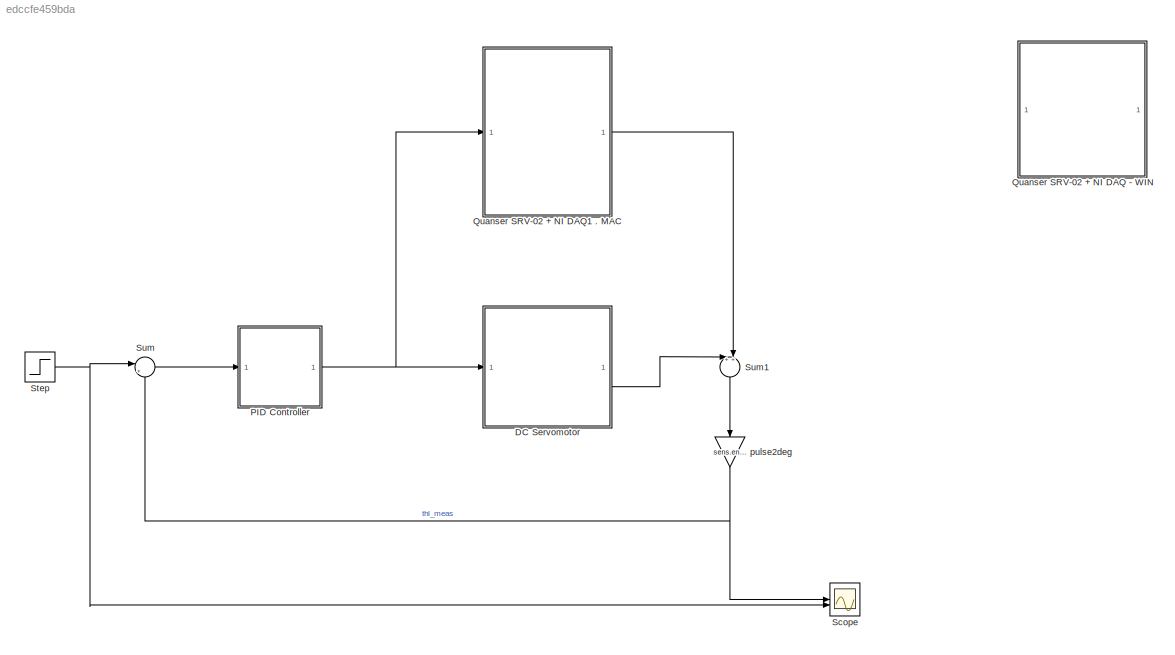
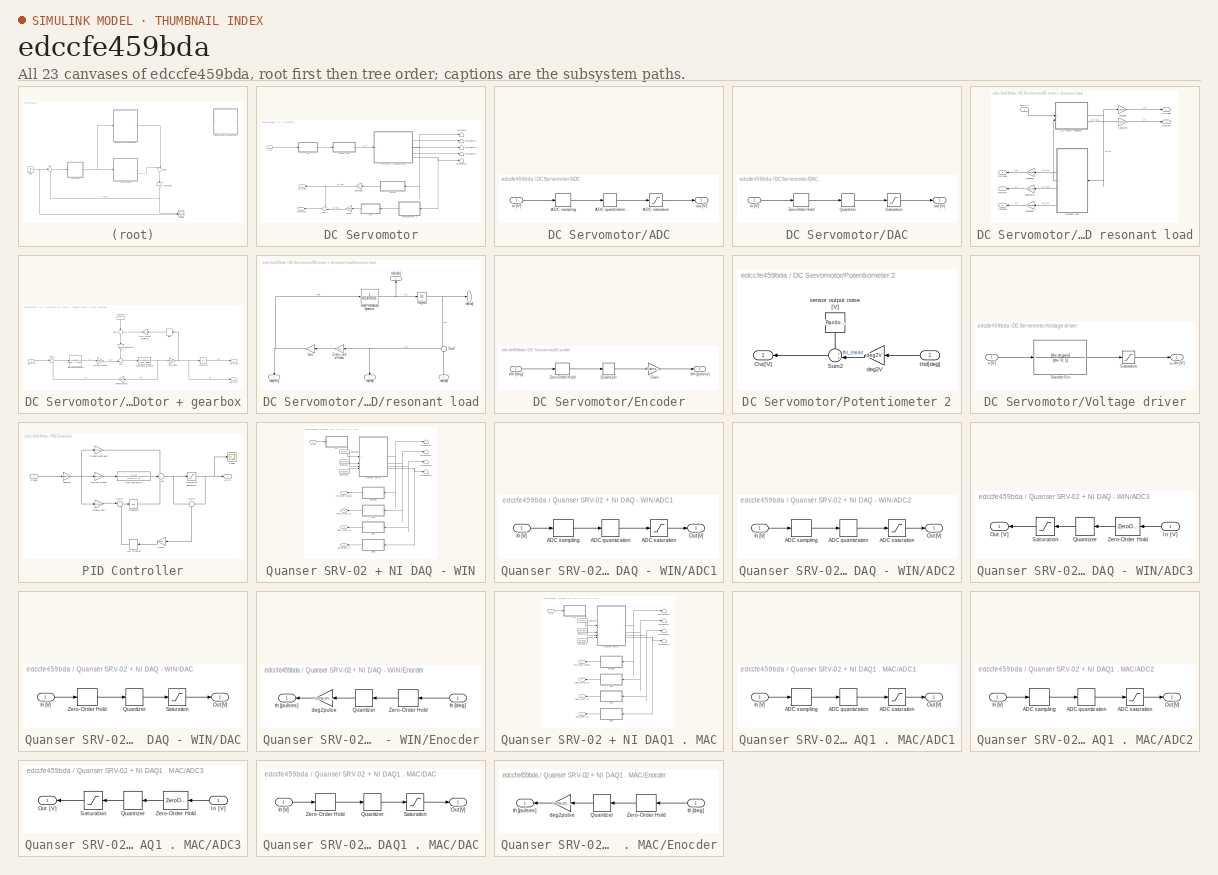
[diagram: thumbnail index - all 23 canvases of the model, root first then tree order]
MODEL slx_edccfe459bda
KIND model
CONFIG AbsTol = auto
CONFIG EnableMultiTasking = off
CONFIG FixedStep = auto
CONFIG MaxStep = auto
CONFIG MinStep = auto
CONFIG RelTol = 1e-3
CONFIG SampleTimeConstraint = Unconstrained
CONFIG SolverName = ode45
CONFIG StartTime = 0.0
CONFIG StopTime = 5
BLOCK [SubSystem] DC Servomotor
  Commented = on
BLOCK [SubSystem] DC Servomotor/ADC
  NameLocation = top
BLOCK [Quantizer] DC Servomotor/ADC/ADC quantization
  QuantizationInterval = daq.adc.q
BLOCK [ZeroOrderHold] DC Servomotor/ADC/ADC sampling
  SampleTime = 0.001
BLOCK [Saturate] DC Servomotor/ADC/ADC saturation
  LowerLimit = -10
  UpperLimit = 10
BLOCK [Inport] DC Servomotor/ADC/in [V]
BLOCK [Outport] DC Servomotor/ADC/out [V]
BLOCK [SubSystem] DC Servomotor/DAC
BLOCK [Quantizer] DC Servomotor/DAC/Quantizer
  QuantizationInterval = daq.dac.q
BLOCK [Saturate] DC Servomotor/DAC/Saturation
  LowerLimit = -10
  UpperLimit = 10
BLOCK [ZeroOrderHold] DC Servomotor/DAC/Zero-Order Hold
  SampleTime = 0.001
BLOCK [Inport] DC Servomotor/DAC/in [V]
BLOCK [Outport] DC Servomotor/DAC/out [V]
BLOCK [SubSystem] DC Servomotor/DC motor + resonant load
BLOCK [SubSystem] DC Servomotor/DC motor + resonant load/DC motor + gearbox
BLOCK [TransferFcn] DC Servomotor/DC motor + resonant load/DC motor + gearbox/Electrical Dynamics
  Denominator = [mot.L, (mot.R+sens.curr.Rs)]
BLOCK [Integrator] DC Servomotor/DC motor + resonant load/DC motor + gearbox/Integrator
BLOCK [TransferFcn] DC Servomotor/DC motor + resonant load/DC motor + gearbox/Mechanical Dynamics
  Denominator = [Jeq, Beq]
BLOCK [Signum] DC Servomotor/DC motor + resonant load/DC motor + gearbox/Sign
  ZeroCross = off
BLOCK [Sum] DC Servomotor/DC motor + resonant load/DC motor + gearbox/Sum
  Inputs = -+|
  NameLocation = top
BLOCK [Sum] DC Servomotor/DC motor + resonant load/DC motor + gearbox/Sum1
  Inputs = |+-
  NameLocation = top
BLOCK [Sum] DC Servomotor/DC motor + resonant load/DC motor + gearbox/Sum2
  Inputs = |++
  NameLocation = right
BLOCK [Gain] DC Servomotor/DC motor + resonant load/DC motor + gearbox/current2torque
  Gain = mot.Kt
BLOCK [Gain] DC Servomotor/DC motor + resonant load/DC motor + gearbox/load2rotor
  Gain = 1/gbox.N
  NameLocation = left
BLOCK [Gain] DC Servomotor/DC motor + resonant load/DC motor + gearbox/rotor2load
  Gain = 1/gbox.N
BLOCK [Gain] DC Servomotor/DC motor + resonant load/DC motor + gearbox/speed2voltage
  Gain = mot.Ke
BLOCK [Gain] DC Servomotor/DC motor + resonant load/DC motor + gearbox/static friction amplitude
  Gain = mld.tausf
BLOCK [Inport] DC Servomotor/DC motor + resonant load/DC motor + gearbox/taue[Nm]
  NameLocation = left
  Port = 2
BLOCK [Outport] DC Servomotor/DC motor + resonant load/DC motor + gearbox/thh [rad]
BLOCK [Inport] DC Servomotor/DC motor + resonant load/DC motor + gearbox/udrv [V]
BLOCK [Outport] DC Servomotor/DC motor + resonant load/DC motor + gearbox/wh[rad//s]
  Port = 2
BLOCK [Gain] DC Servomotor/DC motor + resonant load/rad2deg
  Gain = rad2deg
BLOCK [Gain] DC Servomotor/DC motor + resonant load/rad2deg1
  Gain = rad2deg
  NameLocation = top
BLOCK [Gain] DC Servomotor/DC motor + resonant load/rad2deg2
  Gain = rad2deg
  NameLocation = top
BLOCK [Gain] DC Servomotor/DC motor + resonant load/rads2rpm
  Gain = rads2rpm
BLOCK [Gain] DC Servomotor/DC motor + resonant load/rads2rpm1
  Gain = rads2rpm
  NameLocation = top
BLOCK [SubSystem] DC Servomotor/DC motor + resonant load/resonant load
  NameLocation = top
BLOCK [TransferFcn] DC Servomotor/DC motor + resonant load/resonant load/Beam mechanical dynamics
  Denominator = [mld.Jb mld.Bb]
  Numerator = 1
BLOCK [Gain] DC Servomotor/DC motor + resonant load/resonant load/Elastic joint stiffness
  Gain = mld.k
  NameLocation = top
BLOCK [Gain] DC Servomotor/DC motor + resonant load/resonant load/Gain
  Gain = -1
  NameLocation = top
BLOCK [Integrator] DC Servomotor/DC motor + resonant load/resonant load/Integrator
BLOCK [Sum] DC Servomotor/DC motor + resonant load/resonant load/Sum2
  Inputs = +-
BLOCK [Outport] DC Servomotor/DC motor + resonant load/resonant load/taue[Nm]
  NameLocation = left
BLOCK [Outport] DC Servomotor/DC motor + resonant load/resonant load/thb[rad]
  Port = 2
BLOCK [Outport] DC Servomotor/DC motor + resonant load/resonant load/thd[rad]
  NameLocation = left
  Port = 4
BLOCK [Inport] DC Servomotor/DC motor + resonant load/resonant load/thh[rad]
  NameLocation = right
BLOCK [Outport] DC Servomotor/DC motor + resonant load/resonant load/wb[rad//s]
  NameLocation = right
  Port = 3
BLOCK [Outport] DC Servomotor/DC motor + resonant load/thb [deg]
  NameLocation = top
  Port = 3
BLOCK [Outport] DC Servomotor/DC motor + resonant load/thd[deg]
  NameLocation = top
  Port = 5
BLOCK [Outport] DC Servomotor/DC motor + resonant load/thh [deg]
BLOCK [Inport] DC Servomotor/DC motor + resonant load/udrv [V]
BLOCK [Outport] DC Servomotor/DC motor + resonant load/wb[rpm]
  NameLocation = top
  Port = 4
BLOCK [Outport] DC Servomotor/DC motor + resonant load/wh[rpm]
  Port = 2
BLOCK [SubSystem] DC Servomotor/Encoder
BLOCK [Gain] DC Servomotor/Encoder/Gain
  Gain = 1/sens.enc.pulse2deg
BLOCK [Quantizer] DC Servomotor/Encoder/Quantizer
  QuantizationInterval = sens.enc.pulse2deg
BLOCK [ZeroOrderHold] DC Servomotor/Encoder/Zero-Order Hold
  SampleTime = 0.001
BLOCK [Inport] DC Servomotor/Encoder/thh [deg]
BLOCK [Outport] DC Servomotor/Encoder/thh [pulses]
BLOCK [SubSystem] DC Servomotor/Potentiometer 2
  NameLocation = top
BLOCK [Outport] DC Servomotor/Potentiometer 2/Out[V]
  NameLocation = top
BLOCK [Sum] DC Servomotor/Potentiometer 2/Sum2
  Inputs = ++|
BLOCK [Gain] DC Servomotor/Potentiometer 2/deg2V
  Gain = deg2V
BLOCK [RandomNumber] DC Servomotor/Potentiometer 2/sensor output noise [V]
  NameLocation = left
  SampleTime = 0.001
  Variance = 3.5*10^[-7]
BLOCK [Inport] DC Servomotor/Potentiometer 2/thd[deg]
  NameLocation = top
BLOCK [Sum] DC Servomotor/Sum2
  Inputs = ++|
BLOCK [Terminator] DC Servomotor/Terminator
BLOCK [Terminator] DC Servomotor/Terminator1
BLOCK [Terminator] DC Servomotor/Terminator2
BLOCK [Terminator] DC Servomotor/Terminator3
BLOCK [Terminator] DC Servomotor/Terminator4
BLOCK [Gain] DC Servomotor/V2deg
  Gain = V2deg
BLOCK [SubSystem] DC Servomotor/Voltage driver
BLOCK [Saturate] DC Servomotor/Voltage driver/Saturation
  LowerLimit = -12
  UpperLimit = 12
BLOCK [TransferFcn] DC Servomotor/Voltage driver/Transfer Fcn
  Denominator = [drv.Tc 1]
  Numerator = [drv.dcgain]
BLOCK [Inport] DC Servomotor/Voltage driver/u [V]
BLOCK [Outport] DC Servomotor/Voltage driver/u_drv [V]
BLOCK [Gain] DC Servomotor/pulse2deg
  Gain = sens.enc.pulse2deg
BLOCK [Outport] DC Servomotor/thb_meas
  NameLocation = top
BLOCK [Outport] DC Servomotor/thh_meas
  NameLocation = top
  Port = 2
BLOCK [Inport] DC Servomotor/u [V]
BLOCK [SubSystem] PID Controller
BLOCK [ManualSwitch] PID Controller/Anti wind-up
  NameLocation = top
BLOCK [Gain] PID Controller/Derivative gain
  Gain = PID.Kd
BLOCK [Gain] PID Controller/Gain2
  Gain = Kw/5
  NameLocation = top
BLOCK [Gain] PID Controller/Integral gain
  Gain = PID.Ki
BLOCK [Integrator] PID Controller/Integrator
BLOCK [Gain] PID Controller/Proportional gain
  Gain = PID.Kp
BLOCK [TransferFcn] PID Controller/Real derivative
  Denominator = [PID.Tl 1]
  Numerator = [1, 0]
BLOCK [Saturate] PID Controller/Saturation detection
  LowerLimit = -10
  UpperLimit = 10
BLOCK [Scope] PID Controller/Scope
  Floating = off
  NumInputPorts = 1
  ScopeSpecificationString = Simulink.scopes.TimeScopeBlockCfg('CurrentConfiguration', extmgr.ConfigurationSet(extmgr.Configuration('Core','General UI',true),extmgr.Configuration('Core','Source UI',true),extmgr.Configuration('Sources','WiredSimulink',true,'DataLoggingVariableName','ScopeData1'),extmgr.Configuration('Visuals','Time Domain',true,'SerializedDisplays',{struct('MinYLimReal','-8.61279','MaxYLimReal','77.5151','YLab...<+1427ch>
BLOCK [Sum] PID Controller/Sum
  Inputs = +++
BLOCK [Sum] PID Controller/Sum1
  Inputs = +|-
  NameLocation = left
BLOCK [Sum] PID Controller/Sum2
  Inputs = |+-
BLOCK [Gain] PID Controller/deg2rad
  Gain = deg2rad
BLOCK [Inport] PID Controller/e [deg]
BLOCK [Outport] PID Controller/uc [V]
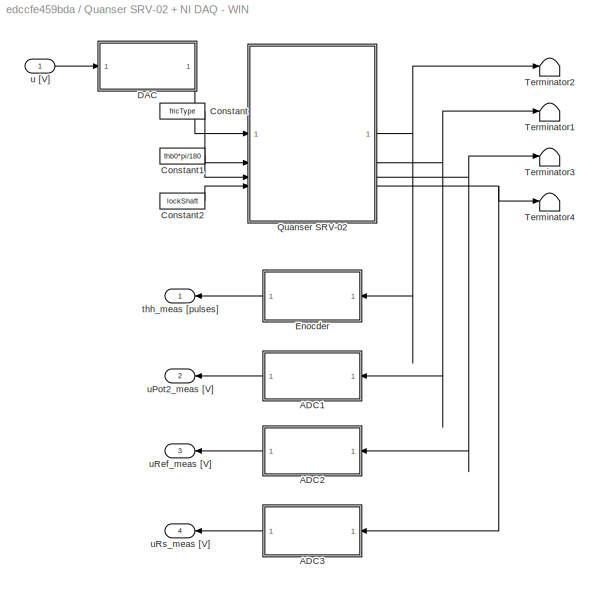
BLOCK [SubSystem] Quanser SRV-02 + NI DAQ - WIN
  Commented = on
BLOCK [SubSystem] Quanser SRV-02 + NI DAQ - WIN/ADC1
BLOCK [Quantizer] Quanser SRV-02 + NI DAQ - WIN/ADC1/ADC quantization
  QuantizationInterval = daq.adc.q
BLOCK [ZeroOrderHold] Quanser SRV-02 + NI DAQ - WIN/ADC1/ADC sampling
  SampleTime = Ts
BLOCK [Saturate] Quanser SRV-02 + NI DAQ - WIN/ADC1/ADC saturation
  LowerLimit = -daq.adc.fs
  UpperLimit = daq.adc.fs
BLOCK [Inport] Quanser SRV-02 + NI DAQ - WIN/ADC1/In [V]
BLOCK [Outport] Quanser SRV-02 + NI DAQ - WIN/ADC1/Out [V]
BLOCK [SubSystem] Quanser SRV-02 + NI DAQ - WIN/ADC2
BLOCK [Quantizer] Quanser SRV-02 + NI DAQ - WIN/ADC2/ADC quantization
  QuantizationInterval = daq.adc.q
BLOCK [ZeroOrderHold] Quanser SRV-02 + NI DAQ - WIN/ADC2/ADC sampling
  SampleTime = Ts
BLOCK [Saturate] Quanser SRV-02 + NI DAQ - WIN/ADC2/ADC saturation
  LowerLimit = -daq.adc.fs
  UpperLimit = daq.adc.fs
BLOCK [Inport] Quanser SRV-02 + NI DAQ - WIN/ADC2/In [V]
BLOCK [Outport] Quanser SRV-02 + NI DAQ - WIN/ADC2/Out [V]
BLOCK [SubSystem] Quanser SRV-02 + NI DAQ - WIN/ADC3
BLOCK [Inport] Quanser SRV-02 + NI DAQ - WIN/ADC3/In [V]
BLOCK [Outport] Quanser SRV-02 + NI DAQ - WIN/ADC3/Out [V]
BLOCK [Quantizer] Quanser SRV-02 + NI DAQ - WIN/ADC3/Quantizer
  QuantizationInterval = daq.adc.q
BLOCK [Saturate] Quanser SRV-02 + NI DAQ - WIN/ADC3/Saturation
  LowerLimit = -daq.adc.fs
  UpperLimit = daq.adc.fs
BLOCK [ZeroOrderHold] Quanser SRV-02 + NI DAQ - WIN/ADC3/Zero-Order Hold
  SampleTime = Ts
BLOCK [Constant] Quanser SRV-02 + NI DAQ - WIN/Constant
  Value = fricType
BLOCK [Constant] Quanser SRV-02 + NI DAQ - WIN/Constant1
  SampleTime = Inf
  Value = thb0*pi/180
BLOCK [Constant] Quanser SRV-02 + NI DAQ - WIN/Constant2
  SampleTime = Inf
  Value = lockShaft
BLOCK [SubSystem] Quanser SRV-02 + NI DAQ - WIN/DAC
BLOCK [Inport] Quanser SRV-02 + NI DAQ - WIN/DAC/In [V]
BLOCK [Outport] Quanser SRV-02 + NI DAQ - WIN/DAC/Out [V]
BLOCK [Quantizer] Quanser SRV-02 + NI DAQ - WIN/DAC/Quantizer
  QuantizationInterval = daq.dac.q
BLOCK [Saturate] Quanser SRV-02 + NI DAQ - WIN/DAC/Saturation
  LowerLimit = -daq.dac.fs
  UpperLimit = daq.dac.fs
BLOCK [ZeroOrderHold] Quanser SRV-02 + NI DAQ - WIN/DAC/Zero-Order Hold
  SampleTime = Ts
BLOCK [SubSystem] Quanser SRV-02 + NI DAQ - WIN/Enocder
BLOCK [Quantizer] Quanser SRV-02 + NI DAQ - WIN/Enocder/Quantizer
  QuantizationInterval = sens.enc.pulse2deg
BLOCK [ZeroOrderHold] Quanser SRV-02 + NI DAQ - WIN/Enocder/Zero-Order Hold
  SampleTime = Ts
BLOCK [Gain] Quanser SRV-02 + NI DAQ - WIN/Enocder/deg2pulse
  Gain = sens.enc.deg2pulse
BLOCK [Inport] Quanser SRV-02 + NI DAQ - WIN/Enocder/th [deg]
BLOCK [Outport] Quanser SRV-02 + NI DAQ - WIN/Enocder/th [pulses]
BLOCK [ModelReference] Quanser SRV-02 + NI DAQ - WIN/Quanser SRV-02
  CopyOfModelProtected = on
  ModelNameDialog = SRV02RL_win64.slxp
  ModelReferenceVersion = 1.76
BLOCK [Terminator] Quanser SRV-02 + NI DAQ - WIN/Terminator1
BLOCK [Terminator] Quanser SRV-02 + NI DAQ - WIN/Terminator2
BLOCK [Terminator] Quanser SRV-02 + NI DAQ - WIN/Terminator3
BLOCK [Terminator] Quanser SRV-02 + NI DAQ - WIN/Terminator4
BLOCK [Outport] Quanser SRV-02 + NI DAQ - WIN/thh_meas [pulses]
BLOCK [Inport] Quanser SRV-02 + NI DAQ - WIN/u [V]
BLOCK [Outport] Quanser SRV-02 + NI DAQ - WIN/uPot2_meas [V]
  Port = 2
BLOCK [Outport] Quanser SRV-02 + NI DAQ - WIN/uRef_meas [V]
  Port = 3
BLOCK [Outport] Quanser SRV-02 + NI DAQ - WIN/uRs_meas [V]
  Port = 4
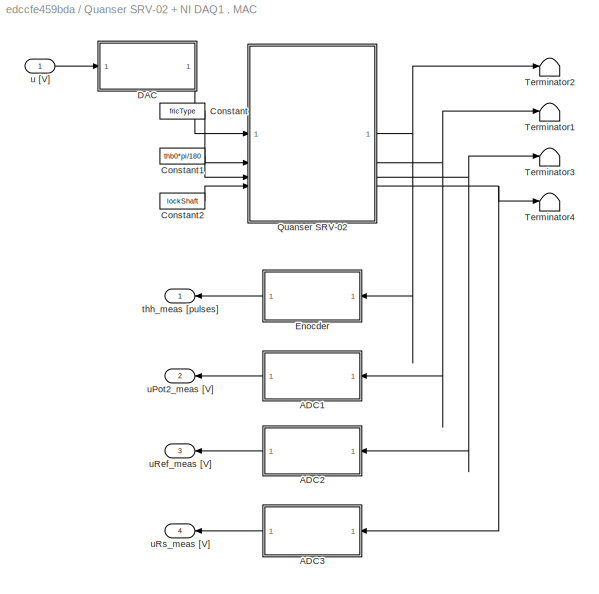
BLOCK [SubSystem] Quanser SRV-02 + NI DAQ1 . MAC
BLOCK [SubSystem] Quanser SRV-02 + NI DAQ1 . MAC/ADC1
BLOCK [Quantizer] Quanser SRV-02 + NI DAQ1 . MAC/ADC1/ADC quantization
  QuantizationInterval = daq.adc.q
BLOCK [ZeroOrderHold] Quanser SRV-02 + NI DAQ1 . MAC/ADC1/ADC sampling
  SampleTime = Ts
BLOCK [Saturate] Quanser SRV-02 + NI DAQ1 . MAC/ADC1/ADC saturation
  LowerLimit = -daq.adc.fs
  UpperLimit = daq.adc.fs
BLOCK [Inport] Quanser SRV-02 + NI DAQ1 . MAC/ADC1/In [V]
BLOCK [Outport] Quanser SRV-02 + NI DAQ1 . MAC/ADC1/Out [V]
BLOCK [SubSystem] Quanser SRV-02 + NI DAQ1 . MAC/ADC2
BLOCK [Quantizer] Quanser SRV-02 + NI DAQ1 . MAC/ADC2/ADC quantization
  QuantizationInterval = daq.adc.q
BLOCK [ZeroOrderHold] Quanser SRV-02 + NI DAQ1 . MAC/ADC2/ADC sampling
  SampleTime = Ts
BLOCK [Saturate] Quanser SRV-02 + NI DAQ1 . MAC/ADC2/ADC saturation
  LowerLimit = -daq.adc.fs
  UpperLimit = daq.adc.fs
BLOCK [Inport] Quanser SRV-02 + NI DAQ1 . MAC/ADC2/In [V]
BLOCK [Outport] Quanser SRV-02 + NI DAQ1 . MAC/ADC2/Out [V]
BLOCK [SubSystem] Quanser SRV-02 + NI DAQ1 . MAC/ADC3
BLOCK [Inport] Quanser SRV-02 + NI DAQ1 . MAC/ADC3/In [V]
BLOCK [Outport] Quanser SRV-02 + NI DAQ1 . MAC/ADC3/Out [V]
BLOCK [Quantizer] Quanser SRV-02 + NI DAQ1 . MAC/ADC3/Quantizer
  QuantizationInterval = daq.adc.q
BLOCK [Saturate] Quanser SRV-02 + NI DAQ1 . MAC/ADC3/Saturation
  LowerLimit = -daq.adc.fs
  UpperLimit = daq.adc.fs
BLOCK [ZeroOrderHold] Quanser SRV-02 + NI DAQ1 . MAC/ADC3/Zero-Order Hold
  SampleTime = Ts
BLOCK [Constant] Quanser SRV-02 + NI DAQ1 . MAC/Constant
  Value = fricType
BLOCK [Constant] Quanser SRV-02 + NI DAQ1 . MAC/Constant1
  SampleTime = Inf
  Value = thb0*pi/180
BLOCK [Constant] Quanser SRV-02 + NI DAQ1 . MAC/Constant2
  SampleTime = Inf
  Value = lockShaft
BLOCK [SubSystem] Quanser SRV-02 + NI DAQ1 . MAC/DAC
BLOCK [Inport] Quanser SRV-02 + NI DAQ1 . MAC/DAC/In [V]
BLOCK [Outport] Quanser SRV-02 + NI DAQ1 . MAC/DAC/Out [V]
BLOCK [Quantizer] Quanser SRV-02 + NI DAQ1 . MAC/DAC/Quantizer
  QuantizationInterval = daq.dac.q
BLOCK [Saturate] Quanser SRV-02 + NI DAQ1 . MAC/DAC/Saturation
  LowerLimit = -daq.dac.fs
  UpperLimit = daq.dac.fs
BLOCK [ZeroOrderHold] Quanser SRV-02 + NI DAQ1 . MAC/DAC/Zero-Order Hold
  SampleTime = Ts
BLOCK [SubSystem] Quanser SRV-02 + NI DAQ1 . MAC/Enocder
BLOCK [Quantizer] Quanser SRV-02 + NI DAQ1 . MAC/Enocder/Quantizer
  QuantizationInterval = sens.enc.pulse2deg
BLOCK [ZeroOrderHold] Quanser SRV-02 + NI DAQ1 . MAC/Enocder/Zero-Order Hold
  SampleTime = Ts
BLOCK [Gain] Quanser SRV-02 + NI DAQ1 . MAC/Enocder/deg2pulse
  Gain = sens.enc.deg2pulse
BLOCK [Inport] Quanser SRV-02 + NI DAQ1 . MAC/Enocder/th [deg]
BLOCK [Outport] Quanser SRV-02 + NI DAQ1 . MAC/Enocder/th [pulses]
BLOCK [ModelReference] Quanser SRV-02 + NI DAQ1 . MAC/Quanser SRV-02
  CopyOfModelProtected = on
  ModelNameDialog = SRV02RL_maci64.slxp
  ModelReferenceVersion = 1.76
BLOCK [Terminator] Quanser SRV-02 + NI DAQ1 . MAC/Terminator1
BLOCK [Terminator] Quanser SRV-02 + NI DAQ1 . MAC/Terminator2
BLOCK [Terminator] Quanser SRV-02 + NI DAQ1 . MAC/Terminator3
BLOCK [Terminator] Quanser SRV-02 + NI DAQ1 . MAC/Terminator4
BLOCK [Outport] Quanser SRV-02 + NI DAQ1 . MAC/thh_meas [pulses]
BLOCK [Inport] Quanser SRV-02 + NI DAQ1 . MAC/u [V]
BLOCK [Outport] Quanser SRV-02 + NI DAQ1 . MAC/uPot2_meas [V]
  Port = 2
BLOCK [Outport] Quanser SRV-02 + NI DAQ1 . MAC/uRef_meas [V]
  Port = 3
BLOCK [Outport] Quanser SRV-02 + NI DAQ1 . MAC/uRs_meas [V]
  Port = 4
BLOCK [Scope] Scope
  Floating = off
  NumInputPorts = 2
  ScopeSpecificationString = Simulink.scopes.TimeScopeBlockCfg('CurrentConfiguration', extmgr.ConfigurationSet(extmgr.Configuration('Core','General UI',true),extmgr.Configuration('Core','Source UI',true),extmgr.Configuration('Sources','WiredSimulink',true,'DataLoggingVariableName','ScopeData1'),extmgr.Configuration('Visuals','Time Domain',true,'SerializedDisplays',{struct('MinYLimReal','-7.02','MaxYLimReal','63.18','YLabelRea...<+1716ch>
BLOCK [Step] Step
  After = 50
  SampleTime = 0
BLOCK [Sum] Sum
  Inputs = |+-
BLOCK [Sum] Sum1
  Inputs = ++|
  NameLocation = left
BLOCK [Gain] pulse2deg
  Gain = sens.enc.pulse2deg
  NameLocation = left
LINE DC Servomotor/ADC/ADC quantization:1 -> DC Servomotor/ADC/ADC saturation:1
LINE DC Servomotor/ADC/ADC sampling:1 -> DC Servomotor/ADC/ADC quantization:1
LINE DC Servomotor/ADC/ADC saturation:1 -> DC Servomotor/ADC/out [V]:1
LINE DC Servomotor/ADC/in [V]:1 -> DC Servomotor/ADC/ADC sampling:1
LINE DC Servomotor/ADC:1 -> DC Servomotor/V2deg:1
LINE DC Servomotor/DAC/Quantizer:1 -> DC Servomotor/DAC/Saturation:1
LINE DC Servomotor/DAC/Saturation:1 -> DC Servomotor/DAC/out [V]:1
LINE DC Servomotor/DAC/Zero-Order Hold:1 -> DC Servomotor/DAC/Quantizer:1
LINE DC Servomotor/DAC/in [V]:1 -> DC Servomotor/DAC/Zero-Order Hold:1
LINE DC Servomotor/DAC:1 -> DC Servomotor/Voltage driver:1
LINE DC Servomotor/DC motor + resonant load/DC motor + gearbox/Electrical Dynamics:1 -> DC Servomotor/DC motor + resonant load/DC motor + gearbox/current2torque:1
LINE DC Servomotor/DC motor + resonant load/DC motor + gearbox/Integrator:1 -> DC Servomotor/DC motor + resonant load/DC motor + gearbox/thh [rad]:1
NET DC Servomotor/DC motor + resonant load/DC motor + gearbox/Mechanical Dynamics:1 -> DC Servomotor/DC motor + resonant load/DC motor + gearbox/rotor2load:1, DC Servomotor/DC motor + resonant load/DC motor + gearbox/speed2voltage:1
LINE DC Servomotor/DC motor + resonant load/DC motor + gearbox/Sign:1 -> DC Servomotor/DC motor + resonant load/DC motor + gearbox/static friction amplitude:1
LINE DC Servomotor/DC motor + resonant load/DC motor + gearbox/Sum1:1 -> DC Servomotor/DC motor + resonant load/DC motor + gearbox/Electrical Dynamics:1
LINE DC Servomotor/DC motor + resonant load/DC motor + gearbox/Sum2:1 -> DC Servomotor/DC motor + resonant load/DC motor + gearbox/load2rotor:1
LINE DC Servomotor/DC motor + resonant load/DC motor + gearbox/Sum:1 -> DC Servomotor/DC motor + resonant load/DC motor + gearbox/Mechanical Dynamics:1
LINE DC Servomotor/DC motor + resonant load/DC motor + gearbox/current2torque:1 -> DC Servomotor/DC motor + resonant load/DC motor + gearbox/Sum:2
LINE DC Servomotor/DC motor + resonant load/DC motor + gearbox/load2rotor:1 -> DC Servomotor/DC motor + resonant load/DC motor + gearbox/Sum:1
NET DC Servomotor/DC motor + resonant load/DC motor + gearbox/rotor2load:1 -> DC Servomotor/DC motor + resonant load/DC motor + gearbox/Integrator:1, DC Servomotor/DC motor + resonant load/DC motor + gearbox/Sign:1, DC Servomotor/DC motor + resonant load/DC motor + gearbox/wh[rad//s]:1
LINE DC Servomotor/DC motor + resonant load/DC motor + gearbox/speed2voltage:1 -> DC Servomotor/DC motor + resonant load/DC motor + gearbox/Sum1:2
LINE DC Servomotor/DC motor + resonant load/DC motor + gearbox/static friction amplitude:1 -> DC Servomotor/DC motor + resonant load/DC motor + gearbox/Sum2:2
LINE DC Servomotor/DC motor + resonant load/DC motor + gearbox/taue[Nm]:1 -> DC Servomotor/DC motor + resonant load/DC motor + gearbox/Sum2:1
LINE DC Servomotor/DC motor + resonant load/DC motor + gearbox/udrv [V]:1 -> DC Servomotor/DC motor + resonant load/DC motor + gearbox/Sum1:1
NET DC Servomotor/DC motor + resonant load/DC motor + gearbox:1 -> DC Servomotor/DC motor + resonant load/rad2deg:1, DC Servomotor/DC motor + resonant load/resonant load:1
LINE DC Servomotor/DC motor + resonant load/DC motor + gearbox:2 -> DC Servomotor/DC motor + resonant load/rads2rpm:1
LINE DC Servomotor/DC motor + resonant load/rad2deg1:1 -> DC Servomotor/DC motor + resonant load/thb [deg]:1
LINE DC Servomotor/DC motor + resonant load/rad2deg2:1 -> DC Servomotor/DC motor + resonant load/thd[deg]:1
LINE DC Servomotor/DC motor + resonant load/rad2deg:1 -> DC Servomotor/DC motor + resonant load/thh [deg]:1
LINE DC Servomotor/DC motor + resonant load/rads2rpm1:1 -> DC Servomotor/DC motor + resonant load/wb[rpm]:1
LINE DC Servomotor/DC motor + resonant load/rads2rpm:1 -> DC Servomotor/DC motor + resonant load/wh[rpm]:1
NET DC Servomotor/DC motor + resonant load/resonant load/Beam mechanical dynamics:1 -> DC Servomotor/DC motor + resonant load/resonant load/Integrator:1, DC Servomotor/DC motor + resonant load/resonant load/wb[rad//s]:1
LINE DC Servomotor/DC motor + resonant load/resonant load/Elastic joint stiffness:1 -> DC Servomotor/DC motor + resonant load/resonant load/Gain:1
NET DC Servomotor/DC motor + resonant load/resonant load/Gain:1 -> DC Servomotor/DC motor + resonant load/resonant load/Beam mechanical dynamics:1, DC Servomotor/DC motor + resonant load/resonant load/taue[Nm]:1
NET DC Servomotor/DC motor + resonant load/resonant load/Integrator:1 -> DC Servomotor/DC motor + resonant load/resonant load/Sum2:1, DC Servomotor/DC motor + resonant load/resonant load/thb[rad]:1
NET DC Servomotor/DC motor + resonant load/resonant load/Sum2:1 -> DC Servomotor/DC motor + resonant load/resonant load/Elastic joint stiffness:1, DC Servomotor/DC motor + resonant load/resonant load/thd[rad]:1
LINE DC Servomotor/DC motor + resonant load/resonant load/thh[rad]:1 -> DC Servomotor/DC motor + resonant load/resonant load/Sum2:2
LINE DC Servomotor/DC motor + resonant load/resonant load:1 -> DC Servomotor/DC motor + resonant load/DC motor + gearbox:2
LINE DC Servomotor/DC motor + resonant load/resonant load:2 -> DC Servomotor/DC motor + resonant load/rad2deg1:1
LINE DC Servomotor/DC motor + resonant load/resonant load:3 -> DC Servomotor/DC motor + resonant load/rads2rpm1:1
LINE DC Servomotor/DC motor + resonant load/resonant load:4 -> DC Servomotor/DC motor + resonant load/rad2deg2:1
LINE DC Servomotor/DC motor + resonant load/udrv [V]:1 -> DC Servomotor/DC motor + resonant load/DC motor + gearbox:1
NET DC Servomotor/DC motor + resonant load:1 -> DC Servomotor/Encoder:1, DC Servomotor/Terminator:1
LINE DC Servomotor/DC motor + resonant load:2 -> DC Servomotor/Terminator1:1
LINE DC Servomotor/DC motor + resonant load:3 -> DC Servomotor/Terminator2:1
LINE DC Servomotor/DC motor + resonant load:4 -> DC Servomotor/Terminator3:1
NET DC Servomotor/DC motor + resonant load:5 -> DC Servomotor/Potentiometer 2:1, DC Servomotor/Terminator4:1
LINE DC Servomotor/Encoder/Gain:1 -> DC Servomotor/Encoder/thh [pulses]:1
LINE DC Servomotor/Encoder/Quantizer:1 -> DC Servomotor/Encoder/Gain:1
LINE DC Servomotor/Encoder/Zero-Order Hold:1 -> DC Servomotor/Encoder/Quantizer:1
LINE DC Servomotor/Encoder/thh [deg]:1 -> DC Servomotor/Encoder/Zero-Order Hold:1
LINE DC Servomotor/Encoder:1 -> DC Servomotor/pulse2deg:1
LINE DC Servomotor/Potentiometer 2/Sum2:1 -> DC Servomotor/Potentiometer 2/Out[V]:1
LINE DC Servomotor/Potentiometer 2/deg2V:1 -> DC Servomotor/Potentiometer 2/Sum2:2
LINE DC Servomotor/Potentiometer 2/sensor output noise [V]:1 -> DC Servomotor/Potentiometer 2/Sum2:1
LINE DC Servomotor/Potentiometer 2/thd[deg]:1 -> DC Servomotor/Potentiometer 2/deg2V:1
LINE DC Servomotor/Potentiometer 2:1 -> DC Servomotor/ADC:1
LINE DC Servomotor/Sum2:1 -> DC Servomotor/thb_meas:1
LINE DC Servomotor/V2deg:1 -> DC Servomotor/Sum2:2
LINE DC Servomotor/Voltage driver/Saturation:1 -> DC Servomotor/Voltage driver/u_drv [V]:1
LINE DC Servomotor/Voltage driver/Transfer Fcn:1 -> DC Servomotor/Voltage driver/Saturation:1
LINE DC Servomotor/Voltage driver/u [V]:1 -> DC Servomotor/Voltage driver/Transfer Fcn:1
LINE DC Servomotor/Voltage driver:1 -> DC Servomotor/DC motor + resonant load:1
NET DC Servomotor/pulse2deg:1 -> DC Servomotor/Sum2:1, DC Servomotor/thh_meas:1
LINE DC Servomotor/u [V]:1 -> DC Servomotor/DAC:1
LINE DC Servomotor:2 -> Sum1:1
LINE PID Controller/Anti wind-up:1 -> PID Controller/Sum2:2
LINE PID Controller/Derivative gain:1 -> PID Controller/Real derivative:1
LINE PID Controller/Gain2:1 -> PID Controller/Anti wind-up:1
LINE PID Controller/Integral gain:1 -> PID Controller/Sum2:1
LINE PID Controller/Integrator:1 -> PID Controller/Sum:3
LINE PID Controller/Proportional gain:1 -> PID Controller/Sum:1
LINE PID Controller/Real derivative:1 -> PID Controller/Sum:2
NET PID Controller/Saturation detection:1 -> PID Controller/Scope:1, PID Controller/Sum1:2, PID Controller/uc [V]:1
LINE PID Controller/Sum1:1 -> PID Controller/Gain2:1
LINE PID Controller/Sum2:1 -> PID Controller/Integrator:1
NET PID Controller/Sum:1 -> PID Controller/Saturation detection:1, PID Controller/Sum1:1
NET PID Controller/deg2rad:1 -> PID Controller/Derivative gain:1, PID Controller/Integral gain:1, PID Controller/Proportional gain:1
LINE PID Controller/e [deg]:1 -> PID Controller/deg2rad:1
NET PID Controller:1 -> DC Servomotor:1, Quanser SRV-02 + NI DAQ1 . MAC:1
LINE Quanser SRV-02 + NI DAQ - WIN/ADC1/ADC quantization:1 -> Quanser SRV-02 + NI DAQ - WIN/ADC1/ADC saturation:1
LINE Quanser SRV-02 + NI DAQ - WIN/ADC1/ADC sampling:1 -> Quanser SRV-02 + NI DAQ - WIN/ADC1/ADC quantization:1
LINE Quanser SRV-02 + NI DAQ - WIN/ADC1/ADC saturation:1 -> Quanser SRV-02 + NI DAQ - WIN/ADC1/Out [V]:1
LINE Quanser SRV-02 + NI DAQ - WIN/ADC1/In [V]:1 -> Quanser SRV-02 + NI DAQ - WIN/ADC1/ADC sampling:1
LINE Quanser SRV-02 + NI DAQ - WIN/ADC1:1 -> Quanser SRV-02 + NI DAQ - WIN/uPot2_meas [V]:1
LINE Quanser SRV-02 + NI DAQ - WIN/ADC2/ADC quantization:1 -> Quanser SRV-02 + NI DAQ - WIN/ADC2/ADC saturation:1
LINE Quanser SRV-02 + NI DAQ - WIN/ADC2/ADC sampling:1 -> Quanser SRV-02 + NI DAQ - WIN/ADC2/ADC quantization:1
LINE Quanser SRV-02 + NI DAQ - WIN/ADC2/ADC saturation:1 -> Quanser SRV-02 + NI DAQ - WIN/ADC2/Out [V]:1
LINE Quanser SRV-02 + NI DAQ - WIN/ADC2/In [V]:1 -> Quanser SRV-02 + NI DAQ - WIN/ADC2/ADC sampling:1
LINE Quanser SRV-02 + NI DAQ - WIN/ADC2:1 -> Quanser SRV-02 + NI DAQ - WIN/uRef_meas [V]:1
LINE Quanser SRV-02 + NI DAQ - WIN/ADC3/In [V]:1 -> Quanser SRV-02 + NI DAQ - WIN/ADC3/Zero-Order Hold:1
LINE Quanser SRV-02 + NI DAQ - WIN/ADC3/Quantizer:1 -> Quanser SRV-02 + NI DAQ - WIN/ADC3/Saturation:1
LINE Quanser SRV-02 + NI DAQ - WIN/ADC3/Saturation:1 -> Quanser SRV-02 + NI DAQ - WIN/ADC3/Out [V]:1
LINE Quanser SRV-02 + NI DAQ - WIN/ADC3/Zero-Order Hold:1 -> Quanser SRV-02 + NI DAQ - WIN/ADC3/Quantizer:1
LINE Quanser SRV-02 + NI DAQ - WIN/ADC3:1 -> Quanser SRV-02 + NI DAQ - WIN/uRs_meas [V]:1
LINE Quanser SRV-02 + NI DAQ - WIN/Constant1:1 -> Quanser SRV-02 + NI DAQ - WIN/Quanser SRV-02:3
LINE Quanser SRV-02 + NI DAQ - WIN/Constant2:1 -> Quanser SRV-02 + NI DAQ - WIN/Quanser SRV-02:4
LINE Quanser SRV-02 + NI DAQ - WIN/Constant:1 -> Quanser SRV-02 + NI DAQ - WIN/Quanser SRV-02:2
LINE Quanser SRV-02 + NI DAQ - WIN/DAC/In [V]:1 -> Quanser SRV-02 + NI DAQ - WIN/DAC/Zero-Order Hold:1
LINE Quanser SRV-02 + NI DAQ - WIN/DAC/Quantizer:1 -> Quanser SRV-02 + NI DAQ - WIN/DAC/Saturation:1
LINE Quanser SRV-02 + NI DAQ - WIN/DAC/Saturation:1 -> Quanser SRV-02 + NI DAQ - WIN/DAC/Out [V]:1
LINE Quanser SRV-02 + NI DAQ - WIN/DAC/Zero-Order Hold:1 -> Quanser SRV-02 + NI DAQ - WIN/DAC/Quantizer:1
LINE Quanser SRV-02 + NI DAQ - WIN/DAC:1 -> Quanser SRV-02 + NI DAQ - WIN/Quanser SRV-02:1
LINE Quanser SRV-02 + NI DAQ - WIN/Enocder/Quantizer:1 -> Quanser SRV-02 + NI DAQ - WIN/Enocder/deg2pulse:1
LINE Quanser SRV-02 + NI DAQ - WIN/Enocder/Zero-Order Hold:1 -> Quanser SRV-02 + NI DAQ - WIN/Enocder/Quantizer:1
LINE Quanser SRV-02 + NI DAQ - WIN/Enocder/deg2pulse:1 -> Quanser SRV-02 + NI DAQ - WIN/Enocder/th [pulses]:1
LINE Quanser SRV-02 + NI DAQ - WIN/Enocder/th [deg]:1 -> Quanser SRV-02 + NI DAQ - WIN/Enocder/Zero-Order Hold:1
LINE Quanser SRV-02 + NI DAQ - WIN/Enocder:1 -> Quanser SRV-02 + NI DAQ - WIN/thh_meas [pulses]:1
NET Quanser SRV-02 + NI DAQ - WIN/Quanser SRV-02:1 -> Quanser SRV-02 + NI DAQ - WIN/Enocder:1, Quanser SRV-02 + NI DAQ - WIN/Terminator2:1
NET Quanser SRV-02 + NI DAQ - WIN/Quanser SRV-02:2 -> Quanser SRV-02 + NI DAQ - WIN/ADC1:1, Quanser SRV-02 + NI DAQ - WIN/Terminator1:1
NET Quanser SRV-02 + NI DAQ - WIN/Quanser SRV-02:3 -> Quanser SRV-02 + NI DAQ - WIN/ADC2:1, Quanser SRV-02 + NI DAQ - WIN/Terminator3:1
NET Quanser SRV-02 + NI DAQ - WIN/Quanser SRV-02:4 -> Quanser SRV-02 + NI DAQ - WIN/ADC3:1, Quanser SRV-02 + NI DAQ - WIN/Terminator4:1
LINE Quanser SRV-02 + NI DAQ - WIN/u [V]:1 -> Quanser SRV-02 + NI DAQ - WIN/DAC:1
LINE Quanser SRV-02 + NI DAQ1 . MAC/ADC1/ADC quantization:1 -> Quanser SRV-02 + NI DAQ1 . MAC/ADC1/ADC saturation:1
LINE Quanser SRV-02 + NI DAQ1 . MAC/ADC1/ADC sampling:1 -> Quanser SRV-02 + NI DAQ1 . MAC/ADC1/ADC quantization:1
LINE Quanser SRV-02 + NI DAQ1 . MAC/ADC1/ADC saturation:1 -> Quanser SRV-02 + NI DAQ1 . MAC/ADC1/Out [V]:1
LINE Quanser SRV-02 + NI DAQ1 . MAC/ADC1/In [V]:1 -> Quanser SRV-02 + NI DAQ1 . MAC/ADC1/ADC sampling:1
LINE Quanser SRV-02 + NI DAQ1 . MAC/ADC1:1 -> Quanser SRV-02 + NI DAQ1 . MAC/uPot2_meas [V]:1
LINE Quanser SRV-02 + NI DAQ1 . MAC/ADC2/ADC quantization:1 -> Quanser SRV-02 + NI DAQ1 . MAC/ADC2/ADC saturation:1
LINE Quanser SRV-02 + NI DAQ1 . MAC/ADC2/ADC sampling:1 -> Quanser SRV-02 + NI DAQ1 . MAC/ADC2/ADC quantization:1
LINE Quanser SRV-02 + NI DAQ1 . MAC/ADC2/ADC saturation:1 -> Quanser SRV-02 + NI DAQ1 . MAC/ADC2/Out [V]:1
LINE Quanser SRV-02 + NI DAQ1 . MAC/ADC2/In [V]:1 -> Quanser SRV-02 + NI DAQ1 . MAC/ADC2/ADC sampling:1
LINE Quanser SRV-02 + NI DAQ1 . MAC/ADC2:1 -> Quanser SRV-02 + NI DAQ1 . MAC/uRef_meas [V]:1
LINE Quanser SRV-02 + NI DAQ1 . MAC/ADC3/In [V]:1 -> Quanser SRV-02 + NI DAQ1 . MAC/ADC3/Zero-Order Hold:1
LINE Quanser SRV-02 + NI DAQ1 . MAC/ADC3/Quantizer:1 -> Quanser SRV-02 + NI DAQ1 . MAC/ADC3/Saturation:1
LINE Quanser SRV-02 + NI DAQ1 . MAC/ADC3/Saturation:1 -> Quanser SRV-02 + NI DAQ1 . MAC/ADC3/Out [V]:1
LINE Quanser SRV-02 + NI DAQ1 . MAC/ADC3/Zero-Order Hold:1 -> Quanser SRV-02 + NI DAQ1 . MAC/ADC3/Quantizer:1
LINE Quanser SRV-02 + NI DAQ1 . MAC/ADC3:1 -> Quanser SRV-02 + NI DAQ1 . MAC/uRs_meas [V]:1
LINE Quanser SRV-02 + NI DAQ1 . MAC/Constant1:1 -> Quanser SRV-02 + NI DAQ1 . MAC/Quanser SRV-02:3
LINE Quanser SRV-02 + NI DAQ1 . MAC/Constant2:1 -> Quanser SRV-02 + NI DAQ1 . MAC/Quanser SRV-02:4
LINE Quanser SRV-02 + NI DAQ1 . MAC/Constant:1 -> Quanser SRV-02 + NI DAQ1 . MAC/Quanser SRV-02:2
LINE Quanser SRV-02 + NI DAQ1 . MAC/DAC/In [V]:1 -> Quanser SRV-02 + NI DAQ1 . MAC/DAC/Zero-Order Hold:1
LINE Quanser SRV-02 + NI DAQ1 . MAC/DAC/Quantizer:1 -> Quanser SRV-02 + NI DAQ1 . MAC/DAC/Saturation:1
LINE Quanser SRV-02 + NI DAQ1 . MAC/DAC/Saturation:1 -> Quanser SRV-02 + NI DAQ1 . MAC/DAC/Out [V]:1
LINE Quanser SRV-02 + NI DAQ1 . MAC/DAC/Zero-Order Hold:1 -> Quanser SRV-02 + NI DAQ1 . MAC/DAC/Quantizer:1
LINE Quanser SRV-02 + NI DAQ1 . MAC/DAC:1 -> Quanser SRV-02 + NI DAQ1 . MAC/Quanser SRV-02:1
LINE Quanser SRV-02 + NI DAQ1 . MAC/Enocder/Quantizer:1 -> Quanser SRV-02 + NI DAQ1 . MAC/Enocder/deg2pulse:1
LINE Quanser SRV-02 + NI DAQ1 . MAC/Enocder/Zero-Order Hold:1 -> Quanser SRV-02 + NI DAQ1 . MAC/Enocder/Quantizer:1
LINE Quanser SRV-02 + NI DAQ1 . MAC/Enocder/deg2pulse:1 -> Quanser SRV-02 + NI DAQ1 . MAC/Enocder/th [pulses]:1
LINE Quanser SRV-02 + NI DAQ1 . MAC/Enocder/th [deg]:1 -> Quanser SRV-02 + NI DAQ1 . MAC/Enocder/Zero-Order Hold:1
LINE Quanser SRV-02 + NI DAQ1 . MAC/Enocder:1 -> Quanser SRV-02 + NI DAQ1 . MAC/thh_meas [pulses]:1
NET Quanser SRV-02 + NI DAQ1 . MAC/Quanser SRV-02:1 -> Quanser SRV-02 + NI DAQ1 . MAC/Enocder:1, Quanser SRV-02 + NI DAQ1 . MAC/Terminator2:1
NET Quanser SRV-02 + NI DAQ1 . MAC/Quanser SRV-02:2 -> Quanser SRV-02 + NI DAQ1 . MAC/ADC1:1, Quanser SRV-02 + NI DAQ1 . MAC/Terminator1:1
NET Quanser SRV-02 + NI DAQ1 . MAC/Quanser SRV-02:3 -> Quanser SRV-02 + NI DAQ1 . MAC/ADC2:1, Quanser SRV-02 + NI DAQ1 . MAC/Terminator3:1
NET Quanser SRV-02 + NI DAQ1 . MAC/Quanser SRV-02:4 -> Quanser SRV-02 + NI DAQ1 . MAC/ADC3:1, Quanser SRV-02 + NI DAQ1 . MAC/Terminator4:1
LINE Quanser SRV-02 + NI DAQ1 . MAC/u [V]:1 -> Quanser SRV-02 + NI DAQ1 . MAC/DAC:1
LINE Quanser SRV-02 + NI DAQ1 . MAC:1 -> Sum1:2
NET Step:1 -> Scope:2, Sum:1
LINE Sum1:1 -> pulse2deg:1
LINE Sum:1 -> PID Controller:1
NET pulse2deg:1 -> Scope:1, Sum:2
note: NET lines group one-source signal fan-out (src -> all destinations, sorted); 1:1 wires keep LINE
